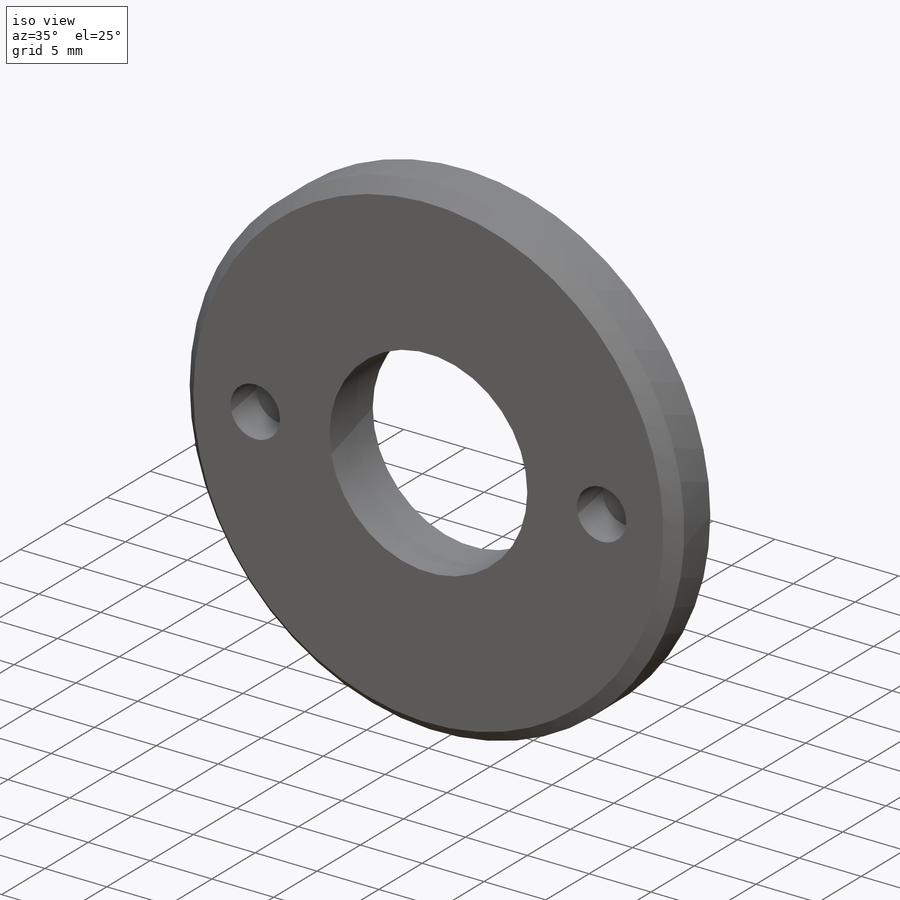
[diagram: iso view]
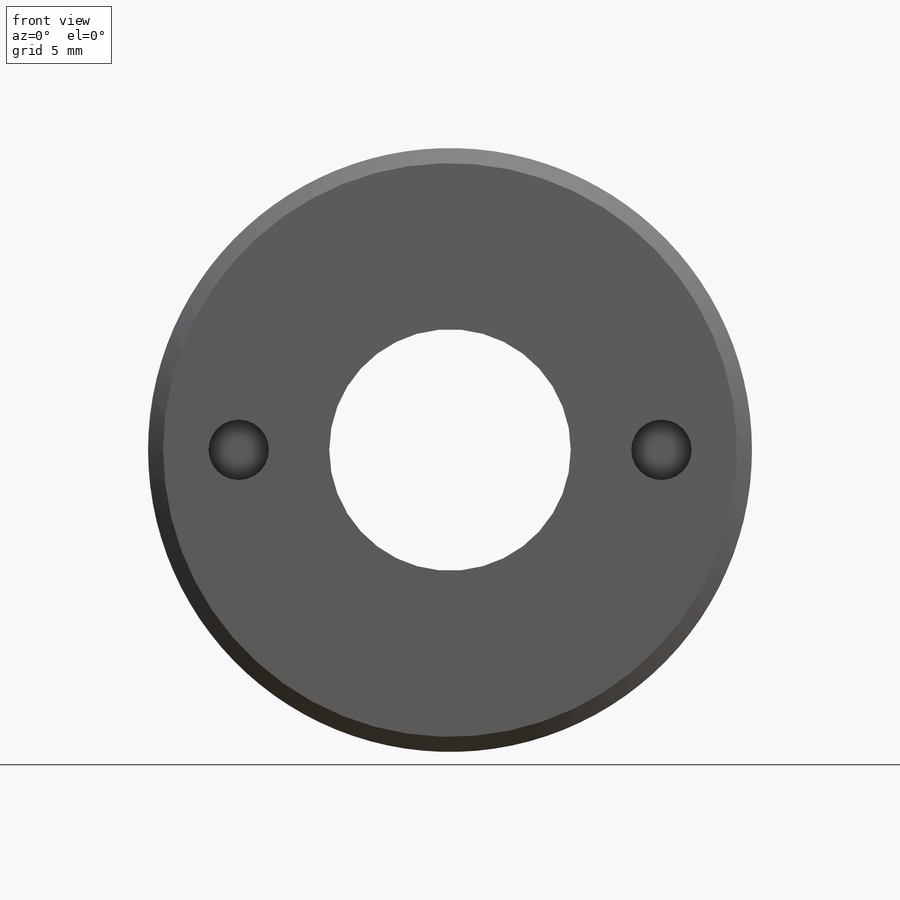
[diagram: front view]
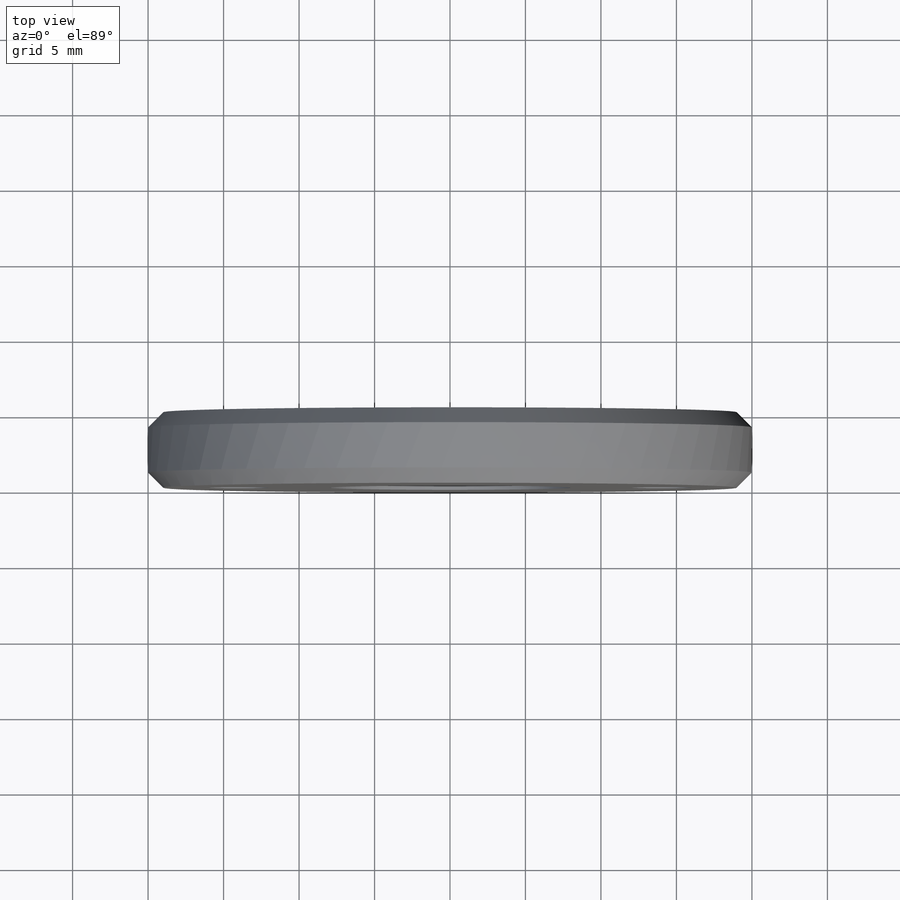
[diagram: top view]
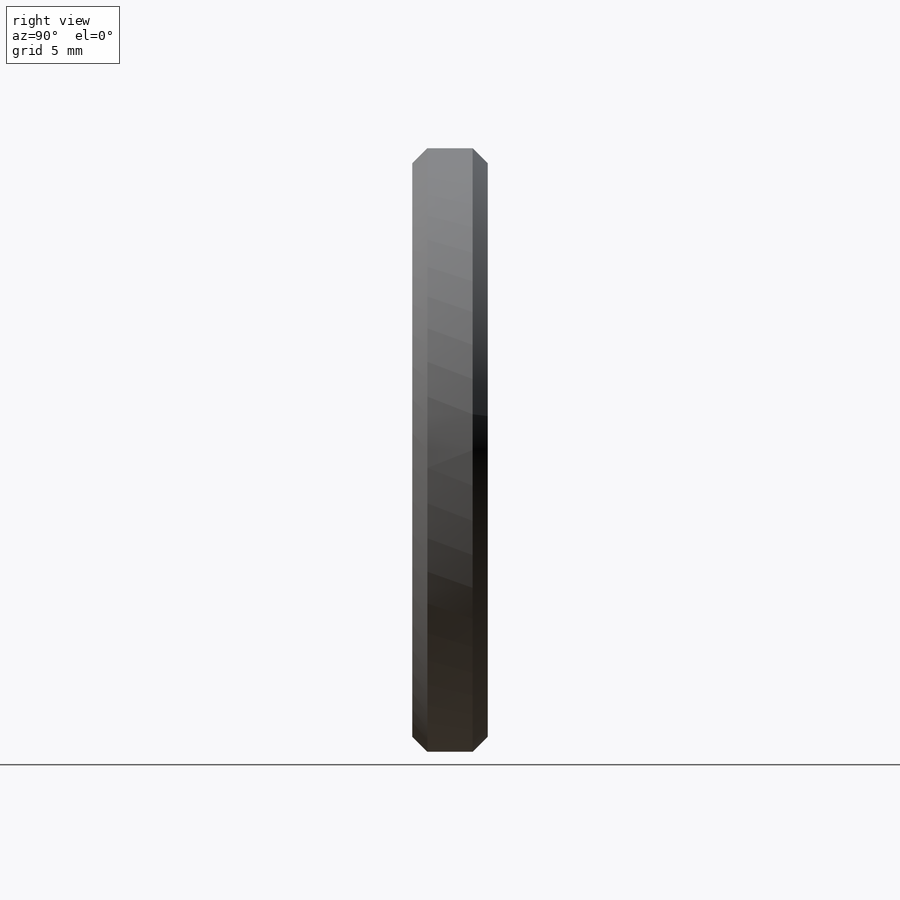
[diagram: right view]
SOLIDWORKS PART (.sldprt)
format: sldprt  version: not decoded by parser v0  size: 190,464 bytes
history: native  units: mm
features: sketch x4, extrude x2, cut_extrude x2, material x1, thread x1, plane x1, chamfer x1 (+16 scaffold rows collapsed)
feature tree (28):
  scaffold x16  (default folders/planes/origin — collapsed)
  material  "Material <not specified>"
  sketch  "Sketch1"  dims[D1=16.0mm D2=25.0mm]
  extrude  "Boss-Extrude1"  [1 undecoded]
  thread  "Cosmetic Thread1"  Diameter=18mm  [1 undecoded]
  plane  "Plane1"  Offset=6mm
  sketch  "Sketch3"  dims[D1=40.0mm]
  extrude  "Boss-Extrude3"  Depth=5mm
  chamfer  "Chamfer2"  Distance=1mm Angle=45deg
  sketch  "Sketch5"
  cut_extrude  "Cut-Extrude1"  Depth=10mm
  sketch  "Sketch6"  dims[D1=4.0mm D2=4.0mm D3=14.0mm D4=14.0mm D5=0.0mm D6=14.0mm]
  cut_extrude  "Cut-Extrude2"  Depth=5mm
decode coverage: 8 of 10 modeling features carry decoded parameters
note: 2 parameter values undecoded
note: suppression state not decoded; provenance and decode notes live in map.json
